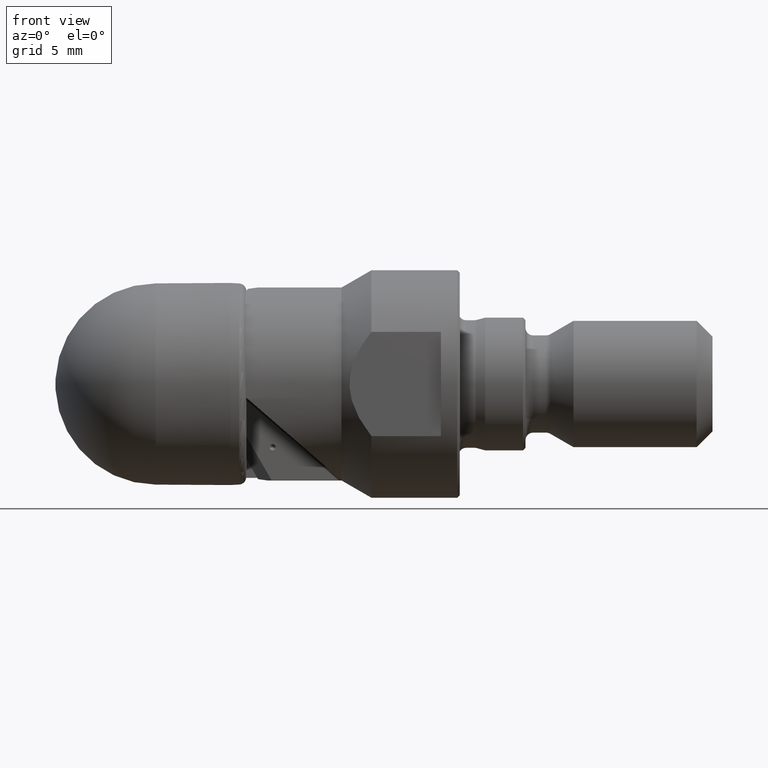
[diagram: clean part render]
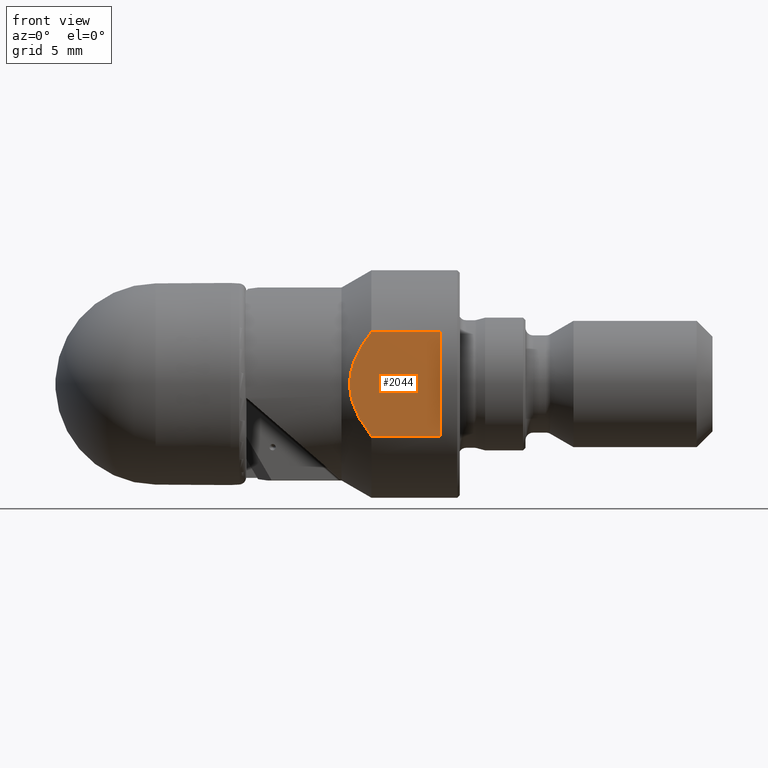
[diagram: same view with one face highlighted and labeled with its STEP entity id]
A machine part, front view. The second image highlights one B-rep face of the part: STEP entity #2044.
In plain terms, the highlighted planar face has unit normal (0, 1, 0).
Its self-contained STEP definition (entity closure, byte-faithful):
#205 = CARTESIAN_POINT ( 'NONE',  ( 23.94448212086810912, -8.000000000000000000, 1.864122932176512926 ) ) ;
#210 = VECTOR ( 'NONE', #2644, 1000.000000000000000 ) ;
#410 = VECTOR ( 'NONE', #2971, 1000.000000000000000 ) ;
#421 = DIRECTION ( 'NONE',  ( 0.0000000000000000000, 0.0000000000000000000, 1.000000000000000000 ) ) ;
#530 = CARTESIAN_POINT ( 'NONE',  ( 23.63171126125203259, -8.000000000000001776, -0.7531301941199655126 ) ) ;
#820 = CARTESIAN_POINT ( 'NONE',  ( 24.85768801682762685, -8.000000000000000000, -3.519582509617478649 ) ) ;
#854 = CARTESIAN_POINT ( 'NONE',  ( 25.08173924385349807, -8.000000000000000000, -3.826766479115793373 ) ) ;
#868 = LINE ( 'NONE', #1730, #410 ) ;
#1003 = VERTEX_POINT ( 'NONE', #2075 ) ;
#1075 = VERTEX_POINT ( 'NONE', #1803 ) ;
#1213 = EDGE_LOOP ( 'NONE', ( #3171, #3859, #2019, #3765 ) ) ;
#1425 = LINE ( 'NONE', #3868, #210 ) ;
#1428 = CARTESIAN_POINT ( 'NONE',  ( 23.63302554191207960, -8.000000000000000000, 0.7628457751417114796 ) ) ;
#1450 = CARTESIAN_POINT ( 'NONE',  ( 23.81428578137081686, -8.000000000000001776, 1.507686842945466399 ) ) ;
#1730 = CARTESIAN_POINT ( 'NONE',  ( -4.762142644779060241, -8.000000000000000000, -4.123105625617659697 ) ) ;
#1738 = CARTESIAN_POINT ( 'NONE',  ( 23.58564308809857124, -8.000000000000001776, 0.3877571127566239451 ) ) ;
#1799 = CARTESIAN_POINT ( 'NONE',  ( 24.86032485949072779, -8.000000000000001776, 3.523235367514353289 ) ) ;
#1803 = CARTESIAN_POINT ( 'NONE',  ( 25.31688199999999966, -8.000000000000000000, 4.123105625617659697 ) ) ;
#1818 = CARTESIAN_POINT ( 'NONE',  ( 30.81688200000000322, -8.000000000000000000, 4.123105625617659697 ) ) ;
#1910 = VERTEX_POINT ( 'NONE', #1818 ) ;
#2018 = CARTESIAN_POINT ( 'NONE',  ( 23.80916203982695123, -8.000000000000000000, -1.490794205055028909 ) ) ;
#2019 = ORIENTED_EDGE ( 'NONE', *, *, #2066, .F. ) ;
#2036 = CARTESIAN_POINT ( 'NONE',  ( 23.93771981719499209, -8.000000000000001776, -1.847618423479338912 ) ) ;
#2044 = ADVANCED_FACE ( 'NONE', ( #2625 ), #2338, .F. ) ;
#2066 = EDGE_CURVE ( 'NONE', #1003, #1075, #3771, .T. ) ;
#2075 = CARTESIAN_POINT ( 'NONE',  ( 25.31688199999999966, -8.000000000000000000, -4.123105625617658809 ) ) ;
#2091 = CARTESIAN_POINT ( 'NONE',  ( 24.44399162822377392, -7.999999999999998224, -2.876090208455491570 ) ) ;
#2315 = CARTESIAN_POINT ( 'NONE',  ( 25.31688199999999966, -8.000000000000000000, -4.123105625617658809 ) ) ;
#2338 = PLANE ( 'NONE',  #3593 ) ;
#2355 = CARTESIAN_POINT ( 'NONE',  ( 24.44798938631253904, -8.000000000000000000, 2.882750105295646126 ) ) ;
#2374 = CARTESIAN_POINT ( 'NONE',  ( 23.58404006744847337, -8.000000000000000000, -0.3681677565093907645 ) ) ;
#2394 = CARTESIAN_POINT ( 'NONE',  ( 22.81688200000000322, -8.000000000000000000, -10.00000000000000178 ) ) ;
#2488 = CARTESIAN_POINT ( 'NONE',  ( 30.81688200000000322, -8.000000000000000000, -4.123105625617659697 ) ) ;
#2620 = CARTESIAN_POINT ( 'NONE',  ( 30.81688200000000322, -8.000000000000000000, -10.00000000000000178 ) ) ;
#2625 = FACE_OUTER_BOUND ( 'NONE', #1213, .T. ) ;
#2644 = DIRECTION ( 'NONE',  ( 1.000000000000000000, -0.0000000000000000000, -0.0000000000000000000 ) ) ;
#2666 = CARTESIAN_POINT ( 'NONE',  ( 25.31688199999999966, -8.000000000000000000, 4.123105625617659697 ) ) ;
#2786 = VECTOR ( 'NONE', #421, 1000.000000000000000 ) ;
#2935 = LINE ( 'NONE', #2620, #2786 ) ;
#2964 = CARTESIAN_POINT ( 'NONE',  ( 24.25631108417921311, -8.000000000000000000, -2.542734522786147533 ) ) ;
#2971 = DIRECTION ( 'NONE',  ( -1.000000000000000000, 0.0000000000000000000, 0.0000000000000000000 ) ) ;
#2982 = CARTESIAN_POINT ( 'NONE',  ( 24.26081590769620533, -8.000000000000001776, 2.550749466250823883 ) ) ;
#3048 = CARTESIAN_POINT ( 'NONE',  ( 25.08298236007248150, -8.000000000000001776, 3.828333118911014576 ) ) ;
#3171 = ORIENTED_EDGE ( 'NONE', *, *, #3519, .T. ) ;
#3273 = DIRECTION ( 'NONE',  ( 0.0000000000000000000, 1.000000000000000000, 0.0000000000000000000 ) ) ;
#3304 = VERTEX_POINT ( 'NONE', #2488 ) ;
#3519 = EDGE_CURVE ( 'NONE', #3304, #1910, #2935, .T. ) ;
#3585 = DIRECTION ( 'NONE',  ( 0.0000000000000000000, 0.0000000000000000000, 1.000000000000000000 ) ) ;
#3593 = AXIS2_PLACEMENT_3D ( 'NONE', #2394, #3273, #3585 ) ;
#3638 = EDGE_CURVE ( 'NONE', #3304, #1003, #868, .T. ) ;
#3765 = ORIENTED_EDGE ( 'NONE', *, *, #3638, .F. ) ;
#3771 = B_SPLINE_CURVE_WITH_KNOTS ( 'NONE', 3,
 ( #2315, #854, #820, #2091, #2964, #2036, #2018, #530, #2374, #1738, #1428, #1450, #205, #2982, #2355, #1799, #3048, #2666 ),
 .UNSPECIFIED., .F., .F.,
 ( 4, 2, 2, 2, 2, 2, 2, 2, 4 ),
 ( 0.01488975395934694079, 0.01602426115794999828, 0.01715876835655305577, 0.01829327555515610979, 0.01942778275375916727, 0.02056228995236222476, 0.02169679715096527878, 0.02283130434956833626, 0.02396581154817139375 ),
 .UNSPECIFIED. ) ;
#3859 = ORIENTED_EDGE ( 'NONE', *, *, #3874, .F. ) ;
#3868 = CARTESIAN_POINT ( 'NONE',  ( -4.762142644779060241, -8.000000000000000000, 4.123105625617659697 ) ) ;
#3874 = EDGE_CURVE ( 'NONE', #1075, #1910, #1425, .T. ) ;